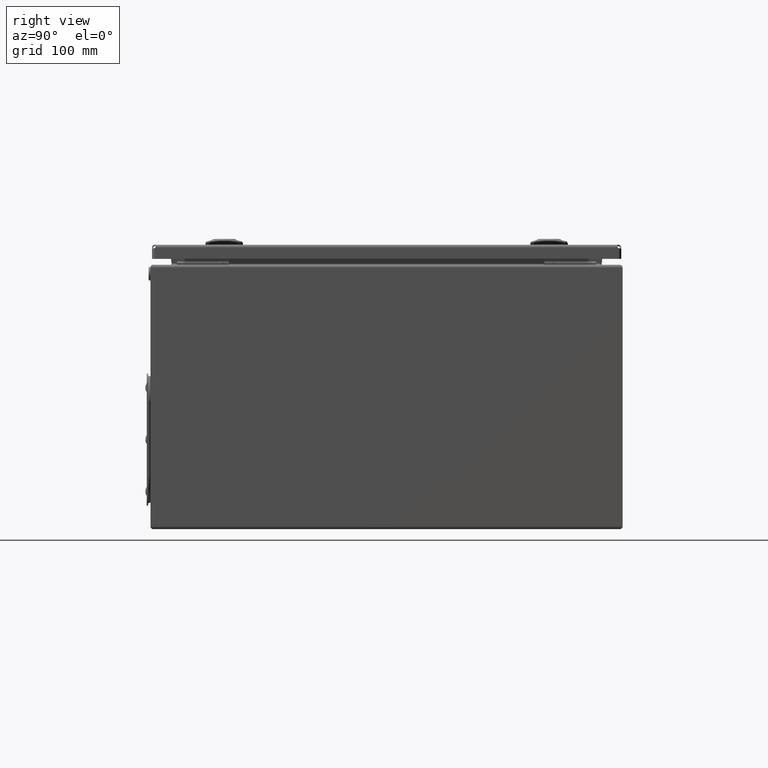
[diagram: clean part render]
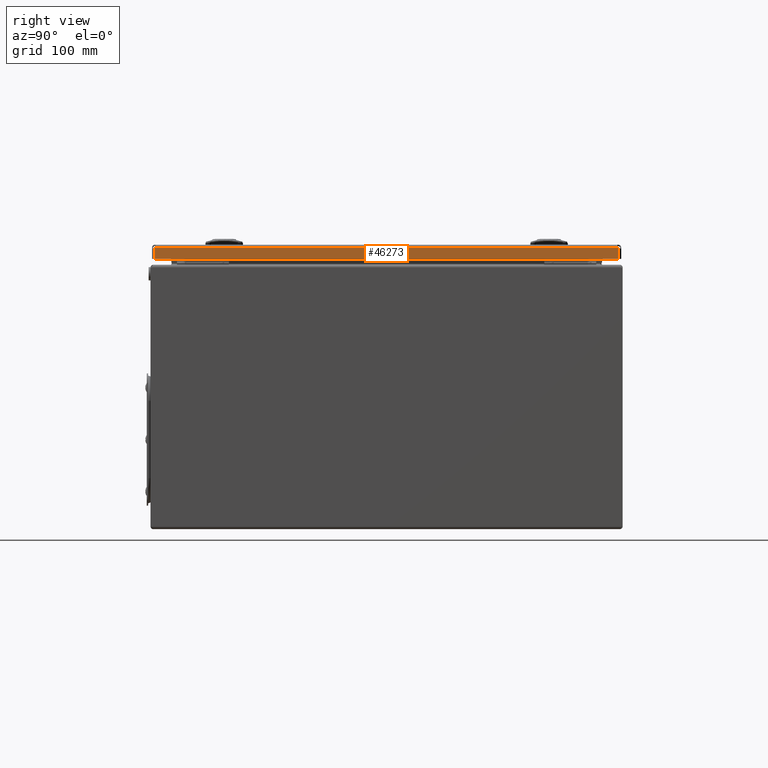
[diagram: same view with one face highlighted and labeled with its STEP entity id]
A machine part, right view. The second image highlights one B-rep face of the part: STEP entity #46273.
In plain terms, the highlighted planar face has unit normal (-1, -0, 0).
Its self-contained STEP definition (entity closure, byte-faithful):
#9668 = CARTESIAN_POINT ( 'NONE',  ( -248.5000000000041200, 244.9999999999978400, 3.000000000001057400 ) ) ;
#10290 = VERTEX_POINT ( 'NONE', #9668 ) ;
#34901 = CARTESIAN_POINT ( 'NONE',  ( -248.5000000000040900, 245.4999999999980100, 15.00000000000120600 ) ) ;
#35245 = DIRECTION ( 'NONE',  ( 0.0000000000000000000, 0.0000000000000000000, -1.000000000000000000 ) ) ;
#35247 = DIRECTION ( 'NONE',  ( 1.000000000000000000, 1.116880395203043500E-029, -4.546195234503239800E-015 ) ) ;
#35249 = CARTESIAN_POINT ( 'NONE',  ( -248.5000000000041200, 246.9999999999978400, 1.500000000001056000 ) ) ;
#35250 = AXIS2_PLACEMENT_3D ( 'NONE', #35249, #35247, #35245 ) ;
#35252 = CIRCLE ( 'NONE', #35250, 2.500000000000022600 ) ;
#35292 = CARTESIAN_POINT ( 'NONE',  ( -248.5000000000040900, -245.4999999999977800, 15.00000000000004100 ) ) ;
#35357 = DIRECTION ( 'NONE',  ( 2.436771487715492000E-015, -1.065473152231356300E-016, 1.000000000000000000 ) ) ;
#35359 = VECTOR ( 'NONE', #35357, 1000.000000000000000 ) ;
#35361 = CARTESIAN_POINT ( 'NONE',  ( -248.5000000000040900, -245.4999999999978400, 15.00000000000004100 ) ) ;
#35363 = LINE ( 'NONE', #35361, #35359 ) ;
#35383 = CARTESIAN_POINT ( 'NONE',  ( -248.5000000000041200, 245.4999999999979000, 3.500000000001113300 ) ) ;
#35453 = DIRECTION ( 'NONE',  ( -1.108405141944260800E-029, -1.000000000000000000, -2.130946304462969300E-016 ) ) ;
#35454 = VECTOR ( 'NONE', #35453, 1000.000000000000000 ) ;
#35455 = CARTESIAN_POINT ( 'NONE',  ( -248.5000000000040900, 260.4999999999948300, 15.00000000000120600 ) ) ;
#35457 = LINE ( 'NONE', #35455, #35454 ) ;
#35475 = DIRECTION ( 'NONE',  ( -2.436771487715492000E-015, 1.065473152231356300E-016, -1.000000000000000000 ) ) ;
#35518 = VECTOR ( 'NONE', #35475, 1000.000000000000000 ) ;
#35520 = CARTESIAN_POINT ( 'NONE',  ( -248.5000000000040900, 245.4999999999980100, 15.00000000000115100 ) ) ;
#35521 = LINE ( 'NONE', #35520, #35518 ) ;
#35725 = CARTESIAN_POINT ( 'NONE',  ( -248.5000000000041200, -245.4999999999979000, 3.500000000000086200 ) ) ;
#35755 = DIRECTION ( 'NONE',  ( -2.436771487715492000E-015, -7.494178599599612200E-030, -1.000000000000000000 ) ) ;
#35757 = DIRECTION ( 'NONE',  ( 1.000000000000000000, 1.116880395203045100E-029, -2.436771487715492000E-015 ) ) ;
#35759 = CARTESIAN_POINT ( 'NONE',  ( -248.5000000000040900, -260.4999999999965300, 15.00000000000004100 ) ) ;
#35761 = AXIS2_PLACEMENT_3D ( 'NONE', #35759, #35757, #35755 ) ;
#35763 = PLANE ( 'NONE',  #35761 ) ;
#35764 = LINE ( 'NONE', #35889, #35887 ) ;
#35769 = FACE_OUTER_BOUND ( 'NONE', #46274, .T. ) ;
#35872 = DIRECTION ( 'NONE',  ( 0.0000000000000000000, 0.0000000000000000000, -1.000000000000000000 ) ) ;
#35874 = DIRECTION ( 'NONE',  ( -1.000000000000000000, -1.116880395203043500E-029, 4.546195234503239800E-015 ) ) ;
#35875 = CARTESIAN_POINT ( 'NONE',  ( -248.5000000000041200, -246.9999999999979500, 1.500000000000001300 ) ) ;
#35876 = AXIS2_PLACEMENT_3D ( 'NONE', #35875, #35874, #35872 ) ;
#35878 = CIRCLE ( 'NONE', #35876, 2.500000000000022600 ) ;
#35884 = CARTESIAN_POINT ( 'NONE',  ( -248.5000000000041200, -244.9999999999979000, 3.000000000000002700 ) ) ;
#35886 = DIRECTION ( 'NONE',  ( 1.030110507835022600E-029, 1.000000000000000000, 7.888609052210185300E-030 ) ) ;
#35887 = VECTOR ( 'NONE', #35886, 1000.000000000000000 ) ;
#35889 = CARTESIAN_POINT ( 'NONE',  ( -248.5000000000041200, -260.4999999999965300, 3.000000000000002700 ) ) ;
#46139 = VERTEX_POINT ( 'NONE', #34901 ) ;
#46205 = VERTEX_POINT ( 'NONE', #35292 ) ;
#46214 = EDGE_CURVE ( 'NONE', #46233, #10290, #35252, .T. ) ;
#46225 = EDGE_CURVE ( 'NONE', #46249, #46205, #35363, .T. ) ;
#46233 = VERTEX_POINT ( 'NONE', #35383 ) ;
#46236 = EDGE_CURVE ( 'NONE', #46139, #46233, #35521, .T. ) ;
#46240 = EDGE_CURVE ( 'NONE', #46139, #46205, #35457, .T. ) ;
#46249 = VERTEX_POINT ( 'NONE', #35725 ) ;
#46273 = ADVANCED_FACE ( 'NONE', ( #35769 ), #35763, .F. ) ;
#46274 = EDGE_LOOP ( 'NONE', ( #46275, #46278, #46280, #46281, #46282, #46283 ) ) ;
#46275 = ORIENTED_EDGE ( 'NONE', *, *, #46276, .F. ) ;
#46276 = EDGE_CURVE ( 'NONE', #46277, #10290, #35764, .T. ) ;
#46277 = VERTEX_POINT ( 'NONE', #35884 ) ;
#46278 = ORIENTED_EDGE ( 'NONE', *, *, #46279, .F. ) ;
#46279 = EDGE_CURVE ( 'NONE', #46249, #46277, #35878, .T. ) ;
#46280 = ORIENTED_EDGE ( 'NONE', *, *, #46225, .T. ) ;
#46281 = ORIENTED_EDGE ( 'NONE', *, *, #46240, .F. ) ;
#46282 = ORIENTED_EDGE ( 'NONE', *, *, #46236, .T. ) ;
#46283 = ORIENTED_EDGE ( 'NONE', *, *, #46214, .T. ) ;